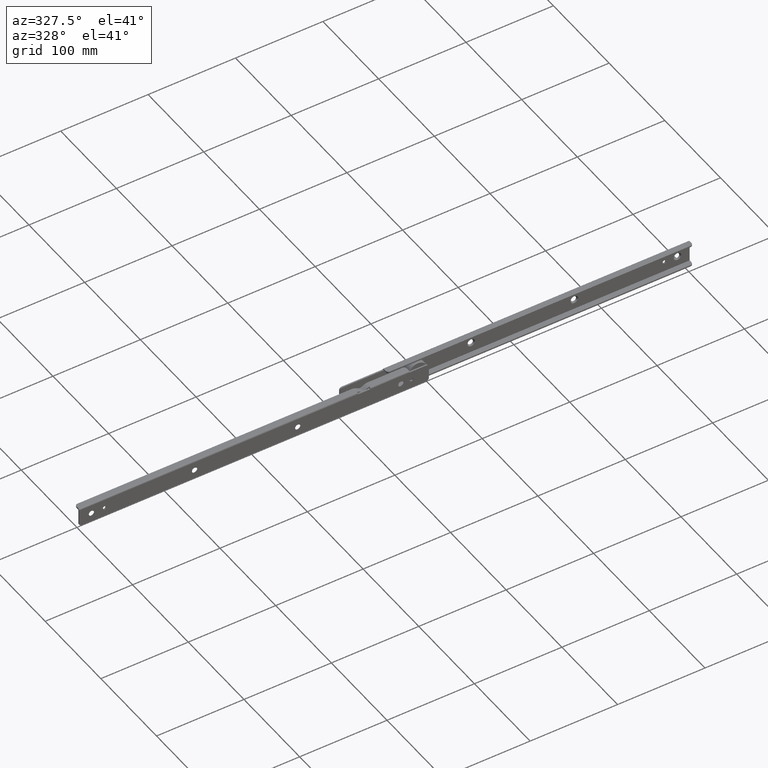
[diagram: clean part render]
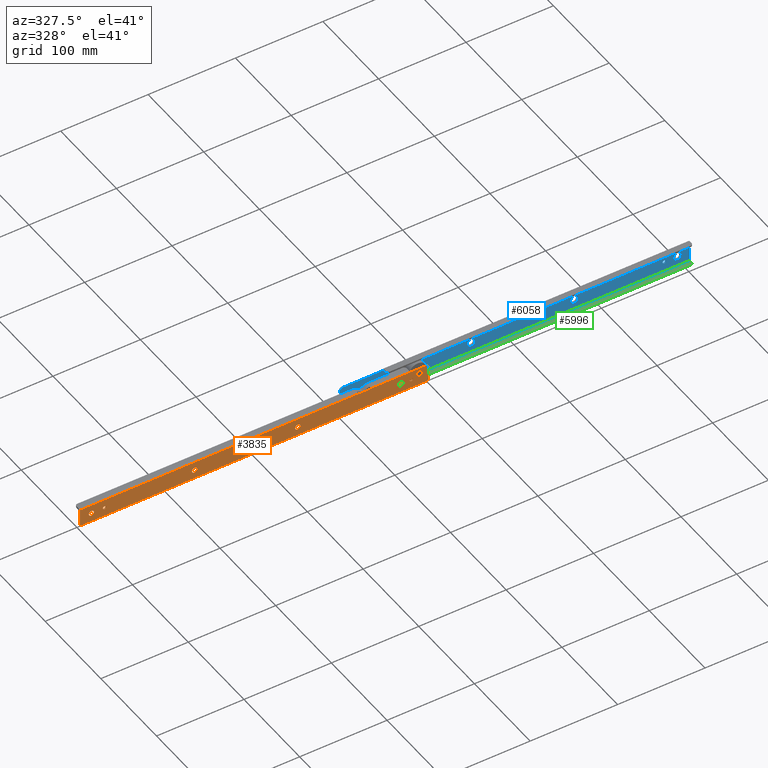
[diagram: same view with three faces highlighted in distinct colors, each labeled with its STEP entity id]
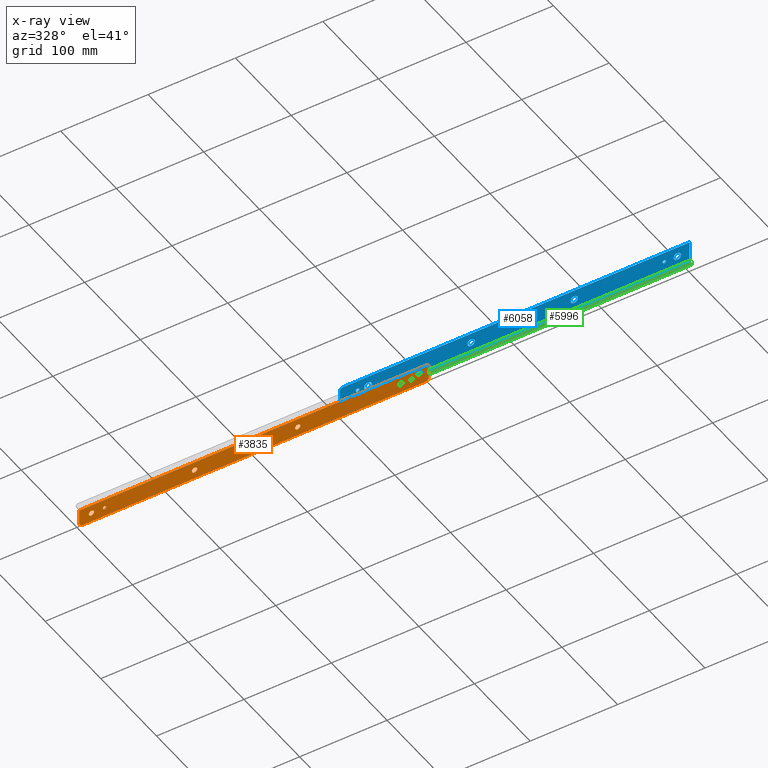
[diagram: x-ray of the same camera — body ghosted, the three highlighted faces saturated]
A machine part, auxiliary view with three faces highlighted in distinct colors.
The next image is the same camera in x-ray (body ghosted, the three faces saturated) — at least one of them is partly hidden behind the body in this view.
Their STEP definitions:

[orange] entity #3835 — the highlighted face is a freeform B-spline surface patch.
#1367=CARTESIAN_POINT('',(84.0,-12.0,-10.549999999999800));
#1368=VERTEX_POINT('',#1367);
#1369=CARTESIAN_POINT('',(86.940906133188662,-12.0,-7.831454349220833));
#1370=VERTEX_POINT('',#1369);
#1371=CARTESIAN_POINT('',(84.0,-12.0,-10.549999999999800));
#1372=CARTESIAN_POINT('',(86.726951919095370,-11.999999999999998,-10.549999999999802));
#1373=CARTESIAN_POINT('',(86.940906133188662,-11.999999999999998,-7.831454349220833));
#1381=(BOUNDED_CURVE()B_SPLINE_CURVE(2,(#1371,#1372,#1373),.UNSPECIFIED.,.F.,.U.)B_SPLINE_CURVE_WITH_KNOTS((3,3),(0.0,0.236331298671449),.UNSPECIFIED.)CURVE()GEOMETRIC_REPRESENTATION_ITEM()RATIONAL_B_SPLINE_CURVE((1.0,0.723120660903024,0.969723352078693))REPRESENTATION_ITEM(''));
#1382=EDGE_CURVE('',#1368,#1370,#1381,.T.);
#1423=CARTESIAN_POINT('',(81.059093866811352,-12.0,-7.368545650778768));
#1424=VERTEX_POINT('',#1423);
#1430=CARTESIAN_POINT('',(81.059093866811352,-12.000000000000004,-7.368545650778768));
#1431=CARTESIAN_POINT('',(81.050000000000011,-11.999999999999998,-7.484094167425211));
#1432=CARTESIAN_POINT('',(81.050000000000011,-12.0,-7.599999999999800));
#1433=CARTESIAN_POINT('',(81.050000000000011,-12.0,-10.549999999999802));
#1434=CARTESIAN_POINT('',(84.0,-12.0,-10.549999999999800));
#1442=(BOUNDED_CURVE()B_SPLINE_CURVE(2,(#1430,#1431,#1432,#1433,#1434),.UNSPECIFIED.,.F.,.U.)B_SPLINE_CURVE_WITH_KNOTS((3,2,3),(0.736331298671449,0.750000000000000,1.0),.UNSPECIFIED.)CURVE()GEOMETRIC_REPRESENTATION_ITEM()RATIONAL_B_SPLINE_CURVE((0.969723352078694,0.983986120283524,1.0,0.707106781186548,1.0))REPRESENTATION_ITEM(''));
#1443=EDGE_CURVE('',#1424,#1368,#1442,.T.);
#1466=CARTESIAN_POINT('',(84.0,-12.0,-4.649999999999801));
#1467=VERTEX_POINT('',#1466);
#1468=CARTESIAN_POINT('',(86.940906133188662,-11.999999999999995,-7.831454349220834));
#1469=CARTESIAN_POINT('',(86.949999999999989,-12.0,-7.715905832574388));
#1470=CARTESIAN_POINT('',(86.950000000000003,-12.0,-7.599999999999800));
#1471=CARTESIAN_POINT('',(86.950000000000003,-12.0,-4.649999999999801));
#1472=CARTESIAN_POINT('',(84.0,-12.0,-4.649999999999801));
#1480=(BOUNDED_CURVE()B_SPLINE_CURVE(2,(#1468,#1469,#1470,#1471,#1472),.UNSPECIFIED.,.F.,.U.)B_SPLINE_CURVE_WITH_KNOTS((3,2,3),(0.236331298671449,0.250000000000000,0.500000000000000),.UNSPECIFIED.)CURVE()GEOMETRIC_REPRESENTATION_ITEM()RATIONAL_B_SPLINE_CURVE((0.969723352078694,0.983986120283523,1.0,0.707106781186548,1.0))REPRESENTATION_ITEM(''));
#1481=EDGE_CURVE('',#1370,#1467,#1480,.T.);
#1483=CARTESIAN_POINT('',(84.0,-12.0,-4.649999999999801));
#1484=CARTESIAN_POINT('',(81.273048080904630,-12.000000000000002,-4.649999999999801));
#1485=CARTESIAN_POINT('',(81.059093866811352,-12.0,-7.368545650778768));
#1493=(BOUNDED_CURVE()B_SPLINE_CURVE(2,(#1483,#1484,#1485),.UNSPECIFIED.,.F.,.U.)B_SPLINE_CURVE_WITH_KNOTS((3,3),(0.500000000000000,0.736331298671448),.UNSPECIFIED.)CURVE()GEOMETRIC_REPRESENTATION_ITEM()RATIONAL_B_SPLINE_CURVE((1.0,0.723120660903024,0.969723352078693))REPRESENTATION_ITEM(''));
#1494=EDGE_CURVE('',#1467,#1424,#1493,.T.);
#1549=CARTESIAN_POINT('',(63.0,-12.0,-8.599999999999799));
#1550=VERTEX_POINT('',#1549);
#1551=CARTESIAN_POINT('',(60.009247996658452,-11.999999992453690,-11.364622661887349));
#1552=VERTEX_POINT('',#1551);
#1553=CARTESIAN_POINT('',(63.0,-12.0,-8.599999999999799));
#1554=CARTESIAN_POINT('',(60.226828618870087,-12.000000000000002,-8.599999999999799));
#1555=CARTESIAN_POINT('',(60.009247996658452,-11.999999992453690,-11.364622661887354));
#1563=(BOUNDED_CURVE()B_SPLINE_CURVE(2,(#1553,#1554,#1555),.UNSPECIFIED.,.F.,.U.)B_SPLINE_CURVE_WITH_KNOTS((3,3),(0.0,0.236331294849608),.UNSPECIFIED.)CURVE()GEOMETRIC_REPRESENTATION_ITEM()RATIONAL_B_SPLINE_CURVE((1.0,0.723120665380588,0.969723344102805))REPRESENTATION_ITEM(''));
#1564=EDGE_CURVE('',#1550,#1552,#1563,.T.);
#1605=CARTESIAN_POINT('',(65.990752003341555,-11.999999992453690,-11.835377338112240));
#1606=VERTEX_POINT('',#1605);
#1612=CARTESIAN_POINT('',(65.990752003341555,-11.999999992453686,-11.835377338112247));
#1613=CARTESIAN_POINT('',(66.0,-11.999999999999996,-11.717870371704770));
#1614=CARTESIAN_POINT('',(66.0,-12.0,-11.599999999999801));
#1615=CARTESIAN_POINT('',(66.0,-12.0,-8.599999999999799));
#1616=CARTESIAN_POINT('',(63.0,-12.0,-8.599999999999799));
#1624=(BOUNDED_CURVE()B_SPLINE_CURVE(2,(#1612,#1613,#1614,#1615,#1616),.UNSPECIFIED.,.F.,.U.)B_SPLINE_CURVE_WITH_KNOTS((3,2,3),(0.736331294849609,0.750000000000000,1.0),.UNSPECIFIED.)CURVE()GEOMETRIC_REPRESENTATION_ITEM()RATIONAL_B_SPLINE_CURVE((0.969723344102806,0.983986115805959,1.0,0.707106781186548,1.0))REPRESENTATION_ITEM(''));
#1625=EDGE_CURVE('',#1606,#1550,#1624,.T.);
#1648=CARTESIAN_POINT('',(63.0,-12.0,-14.599999999999801));
#1649=VERTEX_POINT('',#1648);
#1650=CARTESIAN_POINT('',(60.009247996658452,-11.999999992453690,-11.364622661887354));
#1651=CARTESIAN_POINT('',(59.999999999999993,-12.0,-11.482129628294828));
#1652=CARTESIAN_POINT('',(60.0,-12.0,-11.599999999999801));
#1653=CARTESIAN_POINT('',(60.0,-12.0,-14.599999999999794));
#1654=CARTESIAN_POINT('',(63.0,-12.0,-14.599999999999801));
#1662=(BOUNDED_CURVE()B_SPLINE_CURVE(2,(#1650,#1651,#1652,#1653,#1654),.UNSPECIFIED.,.F.,.U.)B_SPLINE_CURVE_WITH_KNOTS((3,2,3),(0.236331294849608,0.250000000000000,0.500000000000000),.UNSPECIFIED.)CURVE()GEOMETRIC_REPRESENTATION_ITEM()RATIONAL_B_SPLINE_CURVE((0.969723344102805,0.983986115805959,1.0,0.707106781186548,1.0))REPRESENTATION_ITEM(''));
#1663=EDGE_CURVE('',#1552,#1649,#1662,.T.);
#1665=CARTESIAN_POINT('',(63.0,-12.0,-14.599999999999801));
#1666=CARTESIAN_POINT('',(65.773171381129899,-12.000000000000002,-14.599999999999801));
#1667=CARTESIAN_POINT('',(65.990752003341541,-11.999999992453688,-11.835377338112240));
#1675=(BOUNDED_CURVE()B_SPLINE_CURVE(2,(#1665,#1666,#1667),.UNSPECIFIED.,.F.,.U.)B_SPLINE_CURVE_WITH_KNOTS((3,3),(0.500000000000000,0.736331294849608),.UNSPECIFIED.)CURVE()GEOMETRIC_REPRESENTATION_ITEM()RATIONAL_B_SPLINE_CURVE((1.0,0.723120665380589,0.969723344102804))REPRESENTATION_ITEM(''));
#1676=EDGE_CURVE('',#1649,#1606,#1675,.T.);
#1731=CARTESIAN_POINT('',(-55.0,-12.0,-8.599999999999799));
#1732=VERTEX_POINT('',#1731);
#1733=CARTESIAN_POINT('',(-57.990752003341541,-11.999999992453690,-11.364622661887349));
#1734=VERTEX_POINT('',#1733);
#1735=CARTESIAN_POINT('',(-55.0,-12.0,-8.599999999999799));
#1736=CARTESIAN_POINT('',(-57.773171381129920,-12.000000000000002,-8.599999999999799));
#1737=CARTESIAN_POINT('',(-57.990752003341541,-11.999999992453690,-11.364622661887354));
#1745=(BOUNDED_CURVE()B_SPLINE_CURVE(2,(#1735,#1736,#1737),.UNSPECIFIED.,.F.,.U.)B_SPLINE_CURVE_WITH_KNOTS((3,3),(0.0,0.236331294849608),.UNSPECIFIED.)CURVE()GEOMETRIC_REPRESENTATION_ITEM()RATIONAL_B_SPLINE_CURVE((1.0,0.723120665380588,0.969723344102805))REPRESENTATION_ITEM(''));
#1746=EDGE_CURVE('',#1732,#1734,#1745,.T.);
#1787=CARTESIAN_POINT('',(-52.009247996658459,-11.999999992453690,-11.835377338112250));
#1788=VERTEX_POINT('',#1787);
#1794=CARTESIAN_POINT('',(-52.009247996658459,-11.999999992453690,-11.835377338112242));
#1795=CARTESIAN_POINT('',(-52.0,-12.0,-11.717870371704771));
#1796=CARTESIAN_POINT('',(-52.0,-12.0,-11.599999999999801));
#1797=CARTESIAN_POINT('',(-52.000000000000007,-12.0,-8.599999999999799));
#1798=CARTESIAN_POINT('',(-55.0,-12.0,-8.599999999999799));
#1806=(BOUNDED_CURVE()B_SPLINE_CURVE(2,(#1794,#1795,#1796,#1797,#1798),.UNSPECIFIED.,.F.,.U.)B_SPLINE_CURVE_WITH_KNOTS((3,2,3),(0.736331294849608,0.750000000000000,1.0),.UNSPECIFIED.)CURVE()GEOMETRIC_REPRESENTATION_ITEM()RATIONAL_B_SPLINE_CURVE((0.969723344102805,0.983986115805959,1.0,0.707106781186548,1.0))REPRESENTATION_ITEM(''));
#1807=EDGE_CURVE('',#1788,#1732,#1806,.T.);
#1830=CARTESIAN_POINT('',(-55.0,-12.0,-14.599999999999801));
#1831=VERTEX_POINT('',#1830);
#1832=CARTESIAN_POINT('',(-57.990752003341541,-11.999999992453690,-11.364622661887354));
#1833=CARTESIAN_POINT('',(-58.0,-12.0,-11.482129628294828));
#1834=CARTESIAN_POINT('',(-58.0,-12.0,-11.599999999999801));
#1835=CARTESIAN_POINT('',(-58.0,-12.0,-14.599999999999794));
#1836=CARTESIAN_POINT('',(-55.0,-12.0,-14.599999999999801));
#1844=(BOUNDED_CURVE()B_SPLINE_CURVE(2,(#1832,#1833,#1834,#1835,#1836),.UNSPECIFIED.,.F.,.U.)B_SPLINE_CURVE_WITH_KNOTS((3,2,3),(0.236331294849608,0.250000000000000,0.500000000000000),.UNSPECIFIED.)CURVE()GEOMETRIC_REPRESENTATION_ITEM()RATIONAL_B_SPLINE_CURVE((0.969723344102805,0.983986115805959,1.0,0.707106781186548,1.0))REPRESENTATION_ITEM(''));
#1845=EDGE_CURVE('',#1734,#1831,#1844,.T.);
#1847=CARTESIAN_POINT('',(-55.0,-12.0,-14.599999999999801));
#1848=CARTESIAN_POINT('',(-52.226828618870115,-12.000000000000002,-14.599999999999801));
#1849=CARTESIAN_POINT('',(-52.009247996658452,-11.999999992453688,-11.835377338112250));
#1857=(BOUNDED_CURVE()B_SPLINE_CURVE(2,(#1847,#1848,#1849),.UNSPECIFIED.,.F.,.U.)B_SPLINE_CURVE_WITH_KNOTS((3,3),(0.500000000000000,0.736331294849608),.UNSPECIFIED.)CURVE()GEOMETRIC_REPRESENTATION_ITEM()RATIONAL_B_SPLINE_CURVE((1.0,0.723120665380589,0.969723344102804))REPRESENTATION_ITEM(''));
#1858=EDGE_CURVE('',#1831,#1788,#1857,.T.);
#1913=CARTESIAN_POINT('',(-173.0,-12.0,-8.599999999999799));
#1914=VERTEX_POINT('',#1913);
#1915=CARTESIAN_POINT('',(-175.990752003341610,-11.999999992453690,-11.364622661887349));
#1916=VERTEX_POINT('',#1915);
#1917=CARTESIAN_POINT('',(-173.0,-12.0,-8.599999999999799));
#1918=CARTESIAN_POINT('',(-175.773171381129940,-12.0,-8.599999999999797));
#1919=CARTESIAN_POINT('',(-175.990752003341560,-11.999999992453693,-11.364622661887358));
#1927=(BOUNDED_CURVE()B_SPLINE_CURVE(2,(#1917,#1918,#1919),.UNSPECIFIED.,.F.,.U.)B_SPLINE_CURVE_WITH_KNOTS((3,3),(0.0,0.236331294849608),.UNSPECIFIED.)CURVE()GEOMETRIC_REPRESENTATION_ITEM()RATIONAL_B_SPLINE_CURVE((1.0,0.723120665380589,0.969723344102805))REPRESENTATION_ITEM(''));
#1928=EDGE_CURVE('',#1914,#1916,#1927,.T.);
#1969=CARTESIAN_POINT('',(-170.009247996658500,-11.999999992453681,-11.835377338112250));
#1970=VERTEX_POINT('',#1969);
#1976=CARTESIAN_POINT('',(-170.009247996658440,-11.999999992453684,-11.835377338112247));
#1977=CARTESIAN_POINT('',(-169.999999999999970,-12.000000000000002,-11.717870371704764));
#1978=CARTESIAN_POINT('',(-170.0,-12.0,-11.599999999999801));
#1979=CARTESIAN_POINT('',(-170.000000000000030,-12.0,-8.599999999999799));
#1980=CARTESIAN_POINT('',(-173.0,-12.0,-8.599999999999799));
#1988=(BOUNDED_CURVE()B_SPLINE_CURVE(2,(#1976,#1977,#1978,#1979,#1980),.UNSPECIFIED.,.F.,.U.)B_SPLINE_CURVE_WITH_KNOTS((3,2,3),(0.736331294849608,0.750000000000000,1.0),.UNSPECIFIED.)CURVE()GEOMETRIC_REPRESENTATION_ITEM()RATIONAL_B_SPLINE_CURVE((0.969723344102805,0.983986115805959,1.0,0.707106781186548,1.0))REPRESENTATION_ITEM(''));
#1989=EDGE_CURVE('',#1970,#1914,#1988,.T.);
#2012=CARTESIAN_POINT('',(-173.0,-12.0,-14.599999999999801));
#2013=VERTEX_POINT('',#2012);
#2014=CARTESIAN_POINT('',(-175.990752003341530,-11.999999992453690,-11.364622661887354));
#2015=CARTESIAN_POINT('',(-175.999999999999970,-12.0,-11.482129628294828));
#2016=CARTESIAN_POINT('',(-176.0,-12.0,-11.599999999999801));
#2017=CARTESIAN_POINT('',(-176.000000000000060,-12.0,-14.599999999999794));
#2018=CARTESIAN_POINT('',(-173.0,-12.0,-14.599999999999801));
#2026=(BOUNDED_CURVE()B_SPLINE_CURVE(2,(#2014,#2015,#2016,#2017,#2018),.UNSPECIFIED.,.F.,.U.)B_SPLINE_CURVE_WITH_KNOTS((3,2,3),(0.236331294849608,0.250000000000000,0.500000000000000),.UNSPECIFIED.)CURVE()GEOMETRIC_REPRESENTATION_ITEM()RATIONAL_B_SPLINE_CURVE((0.969723344102805,0.983986115805959,1.0,0.707106781186548,1.0))REPRESENTATION_ITEM(''));
#2027=EDGE_CURVE('',#1916,#2013,#2026,.T.);
#2029=CARTESIAN_POINT('',(-173.0,-12.0,-14.599999999999801));
#2030=CARTESIAN_POINT('',(-170.226828618870120,-12.000000000000002,-14.599999999999801));
#2031=CARTESIAN_POINT('',(-170.009247996658530,-11.999999992453679,-11.835377338112250));
#2039=(BOUNDED_CURVE()B_SPLINE_CURVE(2,(#2029,#2030,#2031),.UNSPECIFIED.,.F.,.U.)B_SPLINE_CURVE_WITH_KNOTS((3,3),(0.500000000000000,0.736331294849608),.UNSPECIFIED.)CURVE()GEOMETRIC_REPRESENTATION_ITEM()RATIONAL_B_SPLINE_CURVE((1.0,0.723120665380589,0.969723344102804))REPRESENTATION_ITEM(''));
#2040=EDGE_CURVE('',#2013,#1970,#2039,.T.);
#2095=CARTESIAN_POINT('',(-291.0,-12.0,-8.599999999999799));
#2096=VERTEX_POINT('',#2095);
#2097=CARTESIAN_POINT('',(-293.990752003341580,-11.999999992453690,-11.364622661887349));
#2098=VERTEX_POINT('',#2097);
#2099=CARTESIAN_POINT('',(-291.0,-12.0,-8.599999999999799));
#2100=CARTESIAN_POINT('',(-293.773171381129880,-12.0,-8.599999999999799));
#2101=CARTESIAN_POINT('',(-293.990752003341580,-11.999999992453693,-11.364622661887358));
#2109=(BOUNDED_CURVE()B_SPLINE_CURVE(2,(#2099,#2100,#2101),.UNSPECIFIED.,.F.,.U.)B_SPLINE_CURVE_WITH_KNOTS((3,3),(0.0,0.236331294849609),.UNSPECIFIED.)CURVE()GEOMETRIC_REPRESENTATION_ITEM()RATIONAL_B_SPLINE_CURVE((1.0,0.723120665380588,0.969723344102806))REPRESENTATION_ITEM(''));
#2110=EDGE_CURVE('',#2096,#2098,#2109,.T.);
#2151=CARTESIAN_POINT('',(-288.009247996658470,-11.999999992453690,-11.835377338112250));
#2152=VERTEX_POINT('',#2151);
#2158=CARTESIAN_POINT('',(-288.009247996658470,-11.999999992453690,-11.835377338112242));
#2159=CARTESIAN_POINT('',(-288.000000000000060,-12.0,-11.717870371704771));
#2160=CARTESIAN_POINT('',(-288.0,-12.0,-11.599999999999801));
#2161=CARTESIAN_POINT('',(-288.0,-12.0,-8.599999999999799));
#2162=CARTESIAN_POINT('',(-291.0,-12.0,-8.599999999999799));
#2170=(BOUNDED_CURVE()B_SPLINE_CURVE(2,(#2158,#2159,#2160,#2161,#2162),.UNSPECIFIED.,.F.,.U.)B_SPLINE_CURVE_WITH_KNOTS((3,2,3),(0.736331294849608,0.750000000000000,1.0),.UNSPECIFIED.)CURVE()GEOMETRIC_REPRESENTATION_ITEM()RATIONAL_B_SPLINE_CURVE((0.969723344102805,0.983986115805959,1.0,0.707106781186548,1.0))REPRESENTATION_ITEM(''));
#2171=EDGE_CURVE('',#2152,#2096,#2170,.T.);
#2194=CARTESIAN_POINT('',(-291.0,-12.0,-14.599999999999801));
#2195=VERTEX_POINT('',#2194);
#2196=CARTESIAN_POINT('',(-293.990752003341640,-11.999999992453688,-11.364622661887353));
#2197=CARTESIAN_POINT('',(-294.000000000000060,-11.999999999999998,-11.482129628294837));
#2198=CARTESIAN_POINT('',(-294.0,-12.0,-11.599999999999801));
#2199=CARTESIAN_POINT('',(-294.0,-12.0,-14.599999999999794));
#2200=CARTESIAN_POINT('',(-291.0,-12.0,-14.599999999999801));
#2208=(BOUNDED_CURVE()B_SPLINE_CURVE(2,(#2196,#2197,#2198,#2199,#2200),.UNSPECIFIED.,.F.,.U.)B_SPLINE_CURVE_WITH_KNOTS((3,2,3),(0.236331294849609,0.250000000000000,0.500000000000000),.UNSPECIFIED.)CURVE()GEOMETRIC_REPRESENTATION_ITEM()RATIONAL_B_SPLINE_CURVE((0.969723344102805,0.983986115805959,1.0,0.707106781186548,1.0))REPRESENTATION_ITEM(''));
#2209=EDGE_CURVE('',#2098,#2195,#2208,.T.);
#2211=CARTESIAN_POINT('',(-291.0,-12.0,-14.599999999999801));
#2212=CARTESIAN_POINT('',(-288.226828618870060,-12.000000000000002,-14.599999999999801));
#2213=CARTESIAN_POINT('',(-288.009247996658530,-11.999999992453688,-11.835377338112250));
#2221=(BOUNDED_CURVE()B_SPLINE_CURVE(2,(#2211,#2212,#2213),.UNSPECIFIED.,.F.,.U.)B_SPLINE_CURVE_WITH_KNOTS((3,3),(0.500000000000000,0.736331294849608),.UNSPECIFIED.)CURVE()GEOMETRIC_REPRESENTATION_ITEM()RATIONAL_B_SPLINE_CURVE((1.0,0.723120665380589,0.969723344102804))REPRESENTATION_ITEM(''));
#2222=EDGE_CURVE('',#2195,#2152,#2221,.T.);
#2277=CARTESIAN_POINT('',(-276.0,-12.0,-9.599999999999799));
#2278=VERTEX_POINT('',#2277);
#2279=CARTESIAN_POINT('',(-277.993834666779210,-12.0,-11.443081799814310));
#2280=VERTEX_POINT('',#2279);
#2281=CARTESIAN_POINT('',(-276.0,-12.0,-9.599999999999799));
#2282=CARTESIAN_POINT('',(-277.848780967077060,-12.000000000000002,-9.599999999999799));
#2283=CARTESIAN_POINT('',(-277.993834666779150,-11.999999999999995,-11.443081799814308));
#2291=(BOUNDED_CURVE()B_SPLINE_CURVE(2,(#2281,#2282,#2283),.UNSPECIFIED.,.F.,.U.)B_SPLINE_CURVE_WITH_KNOTS((3,3),(0.0,0.236331299131639),.UNSPECIFIED.)CURVE()GEOMETRIC_REPRESENTATION_ITEM()RATIONAL_B_SPLINE_CURVE((1.0,0.723120660363877,0.969723353039076))REPRESENTATION_ITEM(''));
#2292=EDGE_CURVE('',#2278,#2280,#2291,.T.);
#2333=CARTESIAN_POINT('',(-274.006165333220790,-12.0,-11.756918200185281));
#2334=VERTEX_POINT('',#2333);
#2340=CARTESIAN_POINT('',(-274.006165333220790,-12.000000000000004,-11.756918200185279));
#2341=CARTESIAN_POINT('',(-274.0,-11.999999999999998,-11.678580222785440));
#2342=CARTESIAN_POINT('',(-274.0,-12.0,-11.599999999999801));
#2343=CARTESIAN_POINT('',(-273.999999999999940,-12.0,-9.599999999999799));
#2344=CARTESIAN_POINT('',(-276.0,-12.0,-9.599999999999799));
#2352=(BOUNDED_CURVE()B_SPLINE_CURVE(2,(#2340,#2341,#2342,#2343,#2344),.UNSPECIFIED.,.F.,.U.)B_SPLINE_CURVE_WITH_KNOTS((3,2,3),(0.736331299131639,0.750000000000000,1.0),.UNSPECIFIED.)CURVE()GEOMETRIC_REPRESENTATION_ITEM()RATIONAL_B_SPLINE_CURVE((0.969723353039076,0.983986120822670,1.0,0.707106781186548,1.0))REPRESENTATION_ITEM(''));
#2353=EDGE_CURVE('',#2334,#2278,#2352,.T.);
#2376=CARTESIAN_POINT('',(-276.0,-12.0,-13.599999999999801));
#2377=VERTEX_POINT('',#2376);
#2378=CARTESIAN_POINT('',(-277.993834666779210,-11.999999999999996,-11.443081799814312));
#2379=CARTESIAN_POINT('',(-278.000000000000060,-12.0,-11.521419777214158));
#2380=CARTESIAN_POINT('',(-278.0,-12.0,-11.599999999999801));
#2381=CARTESIAN_POINT('',(-278.0,-12.0,-13.599999999999799));
#2382=CARTESIAN_POINT('',(-276.0,-12.0,-13.599999999999801));
#2390=(BOUNDED_CURVE()B_SPLINE_CURVE(2,(#2378,#2379,#2380,#2381,#2382),.UNSPECIFIED.,.F.,.U.)B_SPLINE_CURVE_WITH_KNOTS((3,2,3),(0.236331299131639,0.250000000000000,0.500000000000000),.UNSPECIFIED.)CURVE()GEOMETRIC_REPRESENTATION_ITEM()RATIONAL_B_SPLINE_CURVE((0.969723353039076,0.983986120822670,1.0,0.707106781186548,1.0))REPRESENTATION_ITEM(''));
#2391=EDGE_CURVE('',#2280,#2377,#2390,.T.);
#2393=CARTESIAN_POINT('',(-276.0,-12.0,-13.599999999999801));
#2394=CARTESIAN_POINT('',(-274.151219032923000,-12.0,-13.599999999999799));
#2395=CARTESIAN_POINT('',(-274.006165333220790,-11.999999999999998,-11.756918200185281));
#2403=(BOUNDED_CURVE()B_SPLINE_CURVE(2,(#2393,#2394,#2395),.UNSPECIFIED.,.F.,.U.)B_SPLINE_CURVE_WITH_KNOTS((3,3),(0.500000000000000,0.736331299131640),.UNSPECIFIED.)CURVE()GEOMETRIC_REPRESENTATION_ITEM()RATIONAL_B_SPLINE_CURVE((1.0,0.723120660363876,0.969723353039079))REPRESENTATION_ITEM(''));
#2404=EDGE_CURVE('',#2377,#2334,#2403,.T.);
#2459=CARTESIAN_POINT('',(75.0,-12.0,-9.599999999999799));
#2460=VERTEX_POINT('',#2459);
#2461=CARTESIAN_POINT('',(73.006165333220792,-12.0,-11.443081799814310));
#2462=VERTEX_POINT('',#2461);
#2463=CARTESIAN_POINT('',(75.0,-12.0,-9.599999999999799));
#2464=CARTESIAN_POINT('',(73.151219032923038,-12.0,-9.599999999999799));
#2465=CARTESIAN_POINT('',(73.006165333220792,-11.999999999999996,-11.443081799814312));
#2473=(BOUNDED_CURVE()B_SPLINE_CURVE(2,(#2463,#2464,#2465),.UNSPECIFIED.,.F.,.U.)B_SPLINE_CURVE_WITH_KNOTS((3,3),(0.0,0.236331299131639),.UNSPECIFIED.)CURVE()GEOMETRIC_REPRESENTATION_ITEM()RATIONAL_B_SPLINE_CURVE((1.0,0.723120660363878,0.969723353039075))REPRESENTATION_ITEM(''));
#2474=EDGE_CURVE('',#2460,#2462,#2473,.T.);
#2515=CARTESIAN_POINT('',(76.993834666779208,-12.0,-11.756918200185281));
#2516=VERTEX_POINT('',#2515);
#2522=CARTESIAN_POINT('',(76.993834666779208,-12.0,-11.756918200185284));
#2523=CARTESIAN_POINT('',(77.0,-12.000000000000002,-11.678580222785444));
#2524=CARTESIAN_POINT('',(77.0,-12.0,-11.599999999999801));
#2525=CARTESIAN_POINT('',(77.000000000000014,-12.0,-9.599999999999799));
#2526=CARTESIAN_POINT('',(75.0,-12.0,-9.599999999999799));
#2534=(BOUNDED_CURVE()B_SPLINE_CURVE(2,(#2522,#2523,#2524,#2525,#2526),.UNSPECIFIED.,.F.,.U.)B_SPLINE_CURVE_WITH_KNOTS((3,2,3),(0.736331299131639,0.750000000000000,1.0),.UNSPECIFIED.)CURVE()GEOMETRIC_REPRESENTATION_ITEM()RATIONAL_B_SPLINE_CURVE((0.969723353039076,0.983986120822670,1.0,0.707106781186548,1.0))REPRESENTATION_ITEM(''));
#2535=EDGE_CURVE('',#2516,#2460,#2534,.T.);
#2558=CARTESIAN_POINT('',(75.0,-12.0,-13.599999999999801));
#2559=VERTEX_POINT('',#2558);
#2560=CARTESIAN_POINT('',(73.006165333220792,-12.000000000000005,-11.443081799814308));
#2561=CARTESIAN_POINT('',(73.0,-12.000000000000005,-11.521419777214152));
#2562=CARTESIAN_POINT('',(73.0,-12.0,-11.599999999999801));
#2563=CARTESIAN_POINT('',(72.999999999999986,-12.0,-13.599999999999799));
#2564=CARTESIAN_POINT('',(75.0,-12.0,-13.599999999999801));
#2572=(BOUNDED_CURVE()B_SPLINE_CURVE(2,(#2560,#2561,#2562,#2563,#2564),.UNSPECIFIED.,.F.,.U.)B_SPLINE_CURVE_WITH_KNOTS((3,2,3),(0.236331299131639,0.250000000000000,0.500000000000000),.UNSPECIFIED.)CURVE()GEOMETRIC_REPRESENTATION_ITEM()RATIONAL_B_SPLINE_CURVE((0.969723353039075,0.983986120822670,1.0,0.707106781186548,1.0))REPRESENTATION_ITEM(''));
#2573=EDGE_CURVE('',#2462,#2559,#2572,.T.);
#2575=CARTESIAN_POINT('',(75.0,-12.0,-13.599999999999801));
#2576=CARTESIAN_POINT('',(76.848780967076976,-12.000000000000002,-13.599999999999799));
#2577=CARTESIAN_POINT('',(76.993834666779208,-12.000000000000004,-11.756918200185286));
#2585=(BOUNDED_CURVE()B_SPLINE_CURVE(2,(#2575,#2576,#2577),.UNSPECIFIED.,.F.,.U.)B_SPLINE_CURVE_WITH_KNOTS((3,3),(0.500000000000000,0.736331299131638),.UNSPECIFIED.)CURVE()GEOMETRIC_REPRESENTATION_ITEM()RATIONAL_B_SPLINE_CURVE((1.0,0.723120660363879,0.969723353039074))REPRESENTATION_ITEM(''));
#2586=EDGE_CURVE('',#2559,#2516,#2585,.T.);
#3188=CARTESIAN_POINT('',(-302.0,-12.0,-21.600000000000001));
#3189=VERTEX_POINT('',#3188);
#3195=CARTESIAN_POINT('',(-305.0,-12.0,-18.600000000000001));
#3196=VERTEX_POINT('',#3195);
#3197=CARTESIAN_POINT('',(-305.0,-12.0,-18.600000000000001));
#3198=CARTESIAN_POINT('',(-305.0,-12.0,-21.600000000000005));
#3199=CARTESIAN_POINT('',(-302.0,-12.0,-21.600000000000001));
#3207=(BOUNDED_CURVE()B_SPLINE_CURVE(2,(#3197,#3198,#3199),.UNSPECIFIED.,.F.,.U.)CURVE()GEOMETRIC_REPRESENTATION_ITEM()QUASI_UNIFORM_CURVE()RATIONAL_B_SPLINE_CURVE((1.0,0.707106781186548,1.0))REPRESENTATION_ITEM(''));
#3208=EDGE_CURVE('',#3196,#3189,#3207,.T.);
#3249=CARTESIAN_POINT('',(92.0,-12.0,-1.599999999999795));
#3250=VERTEX_POINT('',#3249);
#3256=CARTESIAN_POINT('',(95.0,-12.0,-4.599999999999800));
#3257=VERTEX_POINT('',#3256);
#3258=CARTESIAN_POINT('',(95.0,-12.0,-4.599999999999800));
#3259=CARTESIAN_POINT('',(95.000000000000014,-12.0,-1.599999999999799));
#3260=CARTESIAN_POINT('',(92.0,-12.0,-1.599999999999800));
#3268=(BOUNDED_CURVE()B_SPLINE_CURVE(2,(#3258,#3259,#3260),.UNSPECIFIED.,.F.,.U.)CURVE()GEOMETRIC_REPRESENTATION_ITEM()QUASI_UNIFORM_CURVE()RATIONAL_B_SPLINE_CURVE((1.0,0.707106781186548,1.0))REPRESENTATION_ITEM(''));
#3269=EDGE_CURVE('',#3257,#3250,#3268,.T.);
#3310=CARTESIAN_POINT('',(95.0,-12.0,-18.600000000000001));
#3311=VERTEX_POINT('',#3310);
#3317=CARTESIAN_POINT('',(92.0,-12.0,-21.600000000000001));
#3318=VERTEX_POINT('',#3317);
#3319=CARTESIAN_POINT('',(92.0,-12.0,-21.600000000000001));
#3320=CARTESIAN_POINT('',(95.000000000000014,-12.0,-21.600000000000005));
#3321=CARTESIAN_POINT('',(95.0,-12.0,-18.600000000000001));
#3329=(BOUNDED_CURVE()B_SPLINE_CURVE(2,(#3319,#3320,#3321),.UNSPECIFIED.,.F.,.U.)CURVE()GEOMETRIC_REPRESENTATION_ITEM()QUASI_UNIFORM_CURVE()RATIONAL_B_SPLINE_CURVE((1.0,0.707106781186548,1.0))REPRESENTATION_ITEM(''));
#3330=EDGE_CURVE('',#3318,#3311,#3329,.T.);
#3345=CARTESIAN_POINT('',(73.0,-12.0,-1.599999999999795));
#3346=VERTEX_POINT('',#3345);
#3347=CARTESIAN_POINT('',(92.0,-12.0,-1.599999999999795));
#3348=CARTESIAN_POINT('',(73.0,-12.0,-1.599999999999795));
#3349=QUASI_UNIFORM_CURVE('',1,(#3347,#3348),.UNSPECIFIED.,.F.,.U.);
#3350=EDGE_CURVE('',#3250,#3346,#3349,.T.);
#3417=CARTESIAN_POINT('',(14.0,-12.0,-1.999999999999800));
#3418=VERTEX_POINT('',#3417);
#3424=CARTESIAN_POINT('',(28.0,-12.0,-1.999999999999800));
#3425=VERTEX_POINT('',#3424);
#3426=CARTESIAN_POINT('',(14.0,-12.0,-1.999999999999800));
#3427=CARTESIAN_POINT('',(28.0,-12.0,-1.999999999999800));
#3428=QUASI_UNIFORM_CURVE('',1,(#3426,#3427),.UNSPECIFIED.,.F.,.U.);
#3429=EDGE_CURVE('',#3418,#3425,#3428,.T.);
#3446=CARTESIAN_POINT('',(14.0,-12.0,-1.599999999999795));
#3447=VERTEX_POINT('',#3446);
#3461=CARTESIAN_POINT('',(14.0,-12.0,-1.599999999999795));
#3462=CARTESIAN_POINT('',(14.0,-12.0,-1.999999999999800));
#3463=QUASI_UNIFORM_CURVE('',1,(#3461,#3462),.UNSPECIFIED.,.F.,.U.);
#3464=EDGE_CURVE('',#3447,#3418,#3463,.T.);
#3487=CARTESIAN_POINT('',(28.0,-12.0,-1.599999999999795));
#3488=VERTEX_POINT('',#3487);
#3517=CARTESIAN_POINT('',(28.0,-12.0,-1.999999999999800));
#3518=CARTESIAN_POINT('',(28.0,-12.0,-1.599999999999795));
#3519=QUASI_UNIFORM_CURVE('',1,(#3517,#3518),.UNSPECIFIED.,.F.,.U.);
#3520=EDGE_CURVE('',#3425,#3488,#3519,.T.);
#3538=CARTESIAN_POINT('',(-305.0,-12.0,-1.599999999999795));
#3539=VERTEX_POINT('',#3538);
#3540=CARTESIAN_POINT('',(-305.0,-12.0,-18.600000000000001));
#3541=CARTESIAN_POINT('',(-305.0,-12.0,-1.599999999999795));
#3542=QUASI_UNIFORM_CURVE('',1,(#3540,#3541),.UNSPECIFIED.,.F.,.U.);
#3543=EDGE_CURVE('',#3196,#3539,#3542,.T.);
#3579=CARTESIAN_POINT('',(95.0,-12.0,-18.600000000000001));
#3580=CARTESIAN_POINT('',(95.0,-12.0,-4.599999999999800));
#3581=QUASI_UNIFORM_CURVE('',1,(#3579,#3580),.UNSPECIFIED.,.F.,.U.);
#3582=EDGE_CURVE('',#3311,#3257,#3581,.T.);
#3685=CARTESIAN_POINT('',(14.0,-12.0,-1.599999999999795));
#3686=CARTESIAN_POINT('',(-305.0,-12.0,-1.599999999999795));
#3687=QUASI_UNIFORM_CURVE('',1,(#3685,#3686),.UNSPECIFIED.,.F.,.U.);
#3688=EDGE_CURVE('',#3447,#3539,#3687,.T.);
#3698=CARTESIAN_POINT('',(92.0,-12.0,-21.600000000000001));
#3699=CARTESIAN_POINT('',(-302.0,-12.0,-21.600000000000001));
#3700=QUASI_UNIFORM_CURVE('',1,(#3698,#3699),.UNSPECIFIED.,.F.,.U.);
#3701=EDGE_CURVE('',#3318,#3189,#3700,.T.);
#3765=CARTESIAN_POINT('',(73.0,-12.0,-1.599999999999795));
#3766=CARTESIAN_POINT('',(28.0,-12.0,-1.599999999999795));
#3767=QUASI_UNIFORM_CURVE('',1,(#3765,#3766),.UNSPECIFIED.,.F.,.U.);
#3768=EDGE_CURVE('',#3346,#3488,#3767,.T.);
#3774=CARTESIAN_POINT('',(-324.979999224722410,-12.0,-0.601000038763667));
#3775=CARTESIAN_POINT('',(-324.979999224722410,-12.0,-22.599000497677942));
#3776=CARTESIAN_POINT('',(114.980009953558390,-12.0,-0.601000038763667));
#3777=CARTESIAN_POINT('',(114.980009953558390,-12.0,-22.599000497677942));
#3778=B_SPLINE_SURFACE_WITH_KNOTS('',1,1,((#3774,#3776),(#3775,#3777)),.UNSPECIFIED.,.F.,.F.,.U.,(2,2),(2,2),(0.0,21.998000458914269),(0.0,439.960009178280930),.UNSPECIFIED.);
#3779=ORIENTED_EDGE('',*,*,#3543,.F.);
#3780=ORIENTED_EDGE('',*,*,#3208,.T.);
#3781=ORIENTED_EDGE('',*,*,#3701,.F.);
#3782=ORIENTED_EDGE('',*,*,#3330,.T.);
#3783=ORIENTED_EDGE('',*,*,#3582,.T.);
#3784=ORIENTED_EDGE('',*,*,#3269,.T.);
#3785=ORIENTED_EDGE('',*,*,#3350,.T.);
#3786=ORIENTED_EDGE('',*,*,#3768,.T.);
#3787=ORIENTED_EDGE('',*,*,#3520,.F.);
#3788=ORIENTED_EDGE('',*,*,#3429,.F.);
#3789=ORIENTED_EDGE('',*,*,#3464,.F.);
#3790=ORIENTED_EDGE('',*,*,#3688,.T.);
#3791=EDGE_LOOP('',(#3779,#3780,#3781,#3782,#3783,#3784,#3785,#3786,#3787,#3788,#3789,#3790));
#3792=FACE_OUTER_BOUND('',#3791,.T.);
#3793=ORIENTED_EDGE('',*,*,#2586,.F.);
#3794=ORIENTED_EDGE('',*,*,#2573,.F.);
#3795=ORIENTED_EDGE('',*,*,#2474,.F.);
#3796=ORIENTED_EDGE('',*,*,#2535,.F.);
#3797=EDGE_LOOP('',(#3793,#3794,#3795,#3796));
#3798=FACE_BOUND('',#3797,.T.);
#3799=ORIENTED_EDGE('',*,*,#2404,.F.);
#3800=ORIENTED_EDGE('',*,*,#2391,.F.);
#3801=ORIENTED_EDGE('',*,*,#2292,.F.);
#3802=ORIENTED_EDGE('',*,*,#2353,.F.);
#3803=EDGE_LOOP('',(#3799,#3800,#3801,#3802));
#3804=FACE_BOUND('',#3803,.T.);
#3805=ORIENTED_EDGE('',*,*,#2222,.F.);
#3806=ORIENTED_EDGE('',*,*,#2209,.F.);
#3807=ORIENTED_EDGE('',*,*,#2110,.F.);
#3808=ORIENTED_EDGE('',*,*,#2171,.F.);
#3809=EDGE_LOOP('',(#3805,#3806,#3807,#3808));
#3810=FACE_BOUND('',#3809,.T.);
#3811=ORIENTED_EDGE('',*,*,#2040,.F.);
#3812=ORIENTED_EDGE('',*,*,#2027,.F.);
#3813=ORIENTED_EDGE('',*,*,#1928,.F.);
#3814=ORIENTED_EDGE('',*,*,#1989,.F.);
#3815=EDGE_LOOP('',(#3811,#3812,#3813,#3814));
#3816=FACE_BOUND('',#3815,.T.);
#3817=ORIENTED_EDGE('',*,*,#1858,.F.);
#3818=ORIENTED_EDGE('',*,*,#1845,.F.);
#3819=ORIENTED_EDGE('',*,*,#1746,.F.);
#3820=ORIENTED_EDGE('',*,*,#1807,.F.);
#3821=EDGE_LOOP('',(#3817,#3818,#3819,#3820));
#3822=FACE_BOUND('',#3821,.T.);
#3823=ORIENTED_EDGE('',*,*,#1676,.F.);
#3824=ORIENTED_EDGE('',*,*,#1663,.F.);
#3825=ORIENTED_EDGE('',*,*,#1564,.F.);
#3826=ORIENTED_EDGE('',*,*,#1625,.F.);
#3827=EDGE_LOOP('',(#3823,#3824,#3825,#3826));
#3828=FACE_BOUND('',#3827,.T.);
#3829=ORIENTED_EDGE('',*,*,#1494,.F.);
#3830=ORIENTED_EDGE('',*,*,#1481,.F.);
#3831=ORIENTED_EDGE('',*,*,#1382,.F.);
#3832=ORIENTED_EDGE('',*,*,#1443,.F.);
#3833=EDGE_LOOP('',(#3829,#3830,#3831,#3832));
#3834=FACE_BOUND('',#3833,.T.);
#3835=ADVANCED_FACE('',(#3792,#3798,#3804,#3810,#3816,#3822,#3828,#3834),#3778,.T.);

[blue] entity #6058 — the highlighted face is a freeform B-spline surface patch.
#3991=CARTESIAN_POINT('',(8.059093866811345,-1.600000000000045,-12.368545650778740));
#3992=VERTEX_POINT('',#3991);
#3998=CARTESIAN_POINT('',(11.0,-1.600000000000045,-15.549999999999800));
#3999=VERTEX_POINT('',#3998);
#4000=CARTESIAN_POINT('',(8.059093866811345,-1.600000000000044,-12.368545650778735));
#4001=CARTESIAN_POINT('',(8.050000000000001,-1.600000000000045,-12.484094167425177));
#4002=CARTESIAN_POINT('',(8.050000000000001,-1.600000000000045,-12.599999999999801));
#4003=CARTESIAN_POINT('',(8.050000000000001,-1.600000000000045,-15.549999999999795));
#4004=CARTESIAN_POINT('',(11.0,-1.600000000000045,-15.549999999999800));
#4012=(BOUNDED_CURVE()B_SPLINE_CURVE(2,(#4000,#4001,#4002,#4003,#4004),.UNSPECIFIED.,.F.,.U.)B_SPLINE_CURVE_WITH_KNOTS((3,2,3),(0.736331298671445,0.750000000000000,1.0),.UNSPECIFIED.)CURVE()GEOMETRIC_REPRESENTATION_ITEM()RATIONAL_B_SPLINE_CURVE((0.969723352078686,0.983986120283519,1.0,0.707106781186548,1.0))REPRESENTATION_ITEM(''));
#4013=EDGE_CURVE('',#3992,#3999,#4012,.T.);
#4015=CARTESIAN_POINT('',(13.940906133188660,-1.600000000000045,-12.831454349220859));
#4016=VERTEX_POINT('',#4015);
#4017=CARTESIAN_POINT('',(11.0,-1.600000000000045,-15.549999999999800));
#4018=CARTESIAN_POINT('',(13.726951919095312,-1.600000000000045,-15.549999999999805));
#4019=CARTESIAN_POINT('',(13.940906133188657,-1.600000000000046,-12.831454349220859));
#4027=(BOUNDED_CURVE()B_SPLINE_CURVE(2,(#4017,#4018,#4019),.UNSPECIFIED.,.F.,.U.)B_SPLINE_CURVE_WITH_KNOTS((3,3),(0.0,0.236331298671445),.UNSPECIFIED.)CURVE()GEOMETRIC_REPRESENTATION_ITEM()RATIONAL_B_SPLINE_CURVE((1.0,0.723120660903028,0.969723352078686))REPRESENTATION_ITEM(''));
#4028=EDGE_CURVE('',#3999,#4016,#4027,.T.);
#4074=CARTESIAN_POINT('',(11.0,-1.600000000000045,-9.649999999999800));
#4075=VERTEX_POINT('',#4074);
#4076=CARTESIAN_POINT('',(13.940906133188657,-1.600000000000046,-12.831454349220859));
#4077=CARTESIAN_POINT('',(13.949999999999998,-1.600000000000045,-12.715905832574425));
#4078=CARTESIAN_POINT('',(13.949999999999999,-1.600000000000045,-12.599999999999801));
#4079=CARTESIAN_POINT('',(13.949999999999999,-1.600000000000045,-9.649999999999800));
#4080=CARTESIAN_POINT('',(11.0,-1.600000000000045,-9.649999999999800));
#4088=(BOUNDED_CURVE()B_SPLINE_CURVE(2,(#4076,#4077,#4078,#4079,#4080),.UNSPECIFIED.,.F.,.U.)B_SPLINE_CURVE_WITH_KNOTS((3,2,3),(0.236331298671445,0.250000000000000,0.500000000000000),.UNSPECIFIED.)CURVE()GEOMETRIC_REPRESENTATION_ITEM()RATIONAL_B_SPLINE_CURVE((0.969723352078686,0.983986120283519,1.0,0.707106781186548,1.0))REPRESENTATION_ITEM(''));
#4089=EDGE_CURVE('',#4016,#4075,#4088,.T.);
#4091=CARTESIAN_POINT('',(11.0,-1.600000000000045,-9.649999999999800));
#4092=CARTESIAN_POINT('',(8.273048080904706,-1.600000000000045,-9.649999999999800));
#4093=CARTESIAN_POINT('',(8.059093866811345,-1.600000000000045,-12.368545650778731));
#4101=(BOUNDED_CURVE()B_SPLINE_CURVE(2,(#4091,#4092,#4093),.UNSPECIFIED.,.F.,.U.)B_SPLINE_CURVE_WITH_KNOTS((3,3),(0.500000000000000,0.736331298671444),.UNSPECIFIED.)CURVE()GEOMETRIC_REPRESENTATION_ITEM()RATIONAL_B_SPLINE_CURVE((1.0,0.723120660903030,0.969723352078684))REPRESENTATION_ITEM(''));
#4102=EDGE_CURVE('',#4075,#3992,#4101,.T.);
#4156=CARTESIAN_POINT('',(27.733255280726119,-1.600000004719585,-7.633750441242771));
#4157=VERTEX_POINT('',#4156);
#4163=CARTESIAN_POINT('',(32.0,-1.599999999999910,-11.399999999999800));
#4164=VERTEX_POINT('',#4163);
#4165=CARTESIAN_POINT('',(32.0,-1.599999999999910,-11.399999999999800));
#4166=CARTESIAN_POINT('',(28.204396076414682,-1.599999999999910,-11.399999999999798));
#4167=CARTESIAN_POINT('',(27.733255280726123,-1.600000004719586,-7.633750441242771));
#4175=(BOUNDED_CURVE()B_SPLINE_CURVE(2,(#4165,#4166,#4167),.UNSPECIFIED.,.F.,.U.)B_SPLINE_CURVE_WITH_KNOTS((3,3),(0.500000000000000,0.728526068513593),.UNSPECIFIED.)CURVE()GEOMETRIC_REPRESENTATION_ITEM()RATIONAL_B_SPLINE_CURVE((1.0,0.732265056841081,0.954005425392706))REPRESENTATION_ITEM(''));
#4176=EDGE_CURVE('',#4164,#4157,#4175,.T.);
#4178=CARTESIAN_POINT('',(36.299836270926079,-1.600000002317306,-7.062475882139019));
#4179=VERTEX_POINT('',#4178);
#4180=CARTESIAN_POINT('',(36.299836270926079,-1.600000002317306,-7.062475882139019));
#4181=CARTESIAN_POINT('',(36.299999999999997,-1.599999999999911,-7.081237576268571));
#4182=CARTESIAN_POINT('',(36.299999999999997,-1.599999999999910,-7.099999999999799));
#4183=CARTESIAN_POINT('',(36.299999999999997,-1.599999999999911,-11.399999999999798));
#4184=CARTESIAN_POINT('',(32.0,-1.599999999999910,-11.399999999999800));
#4192=(BOUNDED_CURVE()B_SPLINE_CURVE(2,(#4180,#4181,#4182,#4183,#4184),.UNSPECIFIED.,.F.,.U.)B_SPLINE_CURVE_WITH_KNOTS((3,2,3),(0.248460104419567,0.250000000000000,0.500000000000000),.UNSPECIFIED.)CURVE()GEOMETRIC_REPRESENTATION_ITEM()RATIONAL_B_SPLINE_CURVE((0.996414025218095,0.998195900107241,1.0,0.707106781186547,1.0))REPRESENTATION_ITEM(''));
#4193=EDGE_CURVE('',#4179,#4164,#4192,.T.);
#4273=CARTESIAN_POINT('',(32.0,-1.599999999999910,-2.799999999999799));
#4274=VERTEX_POINT('',#4273);
#4275=CARTESIAN_POINT('',(32.0,-1.599999999999910,-2.799999999999799));
#4276=CARTESIAN_POINT('',(36.262638175417592,-1.599999999999911,-2.799999999999799));
#4277=CARTESIAN_POINT('',(36.299836270926079,-1.600000002317306,-7.062475882139019));
#4285=(BOUNDED_CURVE()B_SPLINE_CURVE(2,(#4275,#4276,#4277),.UNSPECIFIED.,.F.,.U.)B_SPLINE_CURVE_WITH_KNOTS((3,3),(0.0,0.248460104419567),.UNSPECIFIED.)CURVE()GEOMETRIC_REPRESENTATION_ITEM()RATIONAL_B_SPLINE_CURVE((1.0,0.708910881079306,0.996414025218095))REPRESENTATION_ITEM(''));
#4286=EDGE_CURVE('',#4274,#4179,#4285,.T.);
#4288=CARTESIAN_POINT('',(27.733255280726119,-1.600000004719586,-7.633750441242771));
#4289=CARTESIAN_POINT('',(27.700000000000006,-1.599999999999910,-7.367911220590069));
#4290=CARTESIAN_POINT('',(27.699999999999999,-1.599999999999910,-7.099999999999799));
#4291=CARTESIAN_POINT('',(27.700000000000006,-1.599999999999911,-2.799999999999800));
#4292=CARTESIAN_POINT('',(32.0,-1.599999999999910,-2.799999999999799));
#4300=(BOUNDED_CURVE()B_SPLINE_CURVE(2,(#4288,#4289,#4290,#4291,#4292),.UNSPECIFIED.,.F.,.U.)B_SPLINE_CURVE_WITH_KNOTS((3,2,3),(0.728526068513592,0.750000000000000,1.0),.UNSPECIFIED.)CURVE()GEOMETRIC_REPRESENTATION_ITEM()RATIONAL_B_SPLINE_CURVE((0.954005425392705,0.974841724345466,1.0,0.707106781186547,1.0))REPRESENTATION_ITEM(''));
#4301=EDGE_CURVE('',#4157,#4274,#4300,.T.);
#4342=CARTESIAN_POINT('',(145.733255280726100,-1.600000004719582,-7.633750441242968));
#4343=VERTEX_POINT('',#4342);
#4349=CARTESIAN_POINT('',(150.0,-1.599999999999910,-11.400000000000000));
#4350=VERTEX_POINT('',#4349);
#4351=CARTESIAN_POINT('',(150.0,-1.599999999999910,-11.400000000000000));
#4352=CARTESIAN_POINT('',(146.204396076414640,-1.599999999999910,-11.399999999999999));
#4353=CARTESIAN_POINT('',(145.733255280726150,-1.600000004719582,-7.633750441242968));
#4361=(BOUNDED_CURVE()B_SPLINE_CURVE(2,(#4351,#4352,#4353),.UNSPECIFIED.,.F.,.U.)B_SPLINE_CURVE_WITH_KNOTS((3,3),(0.500000000000000,0.728526068513593),.UNSPECIFIED.)CURVE()GEOMETRIC_REPRESENTATION_ITEM()RATIONAL_B_SPLINE_CURVE((1.0,0.732265056841081,0.954005425392706))REPRESENTATION_ITEM(''));
#4362=EDGE_CURVE('',#4350,#4343,#4361,.T.);
#4364=CARTESIAN_POINT('',(154.299836270926110,-1.600000002317294,-7.062475882139220));
#4365=VERTEX_POINT('',#4364);
#4366=CARTESIAN_POINT('',(154.299836270926110,-1.600000002317295,-7.062475882139220));
#4367=CARTESIAN_POINT('',(154.300000000000040,-1.599999999999911,-7.081237576268773));
#4368=CARTESIAN_POINT('',(154.300000000000010,-1.599999999999910,-7.100000000000001));
#4369=CARTESIAN_POINT('',(154.300000000000040,-1.599999999999911,-11.399999999999999));
#4370=CARTESIAN_POINT('',(150.0,-1.599999999999910,-11.400000000000000));
#4378=(BOUNDED_CURVE()B_SPLINE_CURVE(2,(#4366,#4367,#4368,#4369,#4370),.UNSPECIFIED.,.F.,.U.)B_SPLINE_CURVE_WITH_KNOTS((3,2,3),(0.248460104419567,0.250000000000000,0.500000000000000),.UNSPECIFIED.)CURVE()GEOMETRIC_REPRESENTATION_ITEM()RATIONAL_B_SPLINE_CURVE((0.996414025218095,0.998195900107241,1.0,0.707106781186547,1.0))REPRESENTATION_ITEM(''));
#4379=EDGE_CURVE('',#4365,#4350,#4378,.T.);
#4459=CARTESIAN_POINT('',(150.0,-1.599999999999910,-2.800000000000000));
#4460=VERTEX_POINT('',#4459);
#4461=CARTESIAN_POINT('',(150.0,-1.599999999999910,-2.800000000000000));
#4462=CARTESIAN_POINT('',(154.262638175417520,-1.599999999999911,-2.800000000000001));
#4463=CARTESIAN_POINT('',(154.299836270926080,-1.600000002317294,-7.062475882139220));
#4471=(BOUNDED_CURVE()B_SPLINE_CURVE(2,(#4461,#4462,#4463),.UNSPECIFIED.,.F.,.U.)B_SPLINE_CURVE_WITH_KNOTS((3,3),(0.0,0.248460104419567),.UNSPECIFIED.)CURVE()GEOMETRIC_REPRESENTATION_ITEM()RATIONAL_B_SPLINE_CURVE((1.0,0.708910881079306,0.996414025218095))REPRESENTATION_ITEM(''));
#4472=EDGE_CURVE('',#4460,#4365,#4471,.T.);
#4474=CARTESIAN_POINT('',(145.733255280726070,-1.600000004719582,-7.633750441242969));
#4475=CARTESIAN_POINT('',(145.699999999999960,-1.599999999999910,-7.367911220590267));
#4476=CARTESIAN_POINT('',(145.699999999999990,-1.599999999999910,-7.100000000000001));
#4477=CARTESIAN_POINT('',(145.700000000000050,-1.599999999999911,-2.800000000000000));
#4478=CARTESIAN_POINT('',(150.0,-1.599999999999910,-2.800000000000000));
#4486=(BOUNDED_CURVE()B_SPLINE_CURVE(2,(#4474,#4475,#4476,#4477,#4478),.UNSPECIFIED.,.F.,.U.)B_SPLINE_CURVE_WITH_KNOTS((3,2,3),(0.728526068513592,0.750000000000000,1.0),.UNSPECIFIED.)CURVE()GEOMETRIC_REPRESENTATION_ITEM()RATIONAL_B_SPLINE_CURVE((0.954005425392705,0.974841724345466,1.0,0.707106781186547,1.0))REPRESENTATION_ITEM(''));
#4487=EDGE_CURVE('',#4343,#4460,#4486,.T.);
#4528=CARTESIAN_POINT('',(263.733255280726100,-1.600000004719595,-7.633750441242974));
#4529=VERTEX_POINT('',#4528);
#4535=CARTESIAN_POINT('',(268.0,-1.599999999999910,-11.400000000000000));
#4536=VERTEX_POINT('',#4535);
#4537=CARTESIAN_POINT('',(268.0,-1.599999999999910,-11.400000000000000));
#4538=CARTESIAN_POINT('',(264.204396076414700,-1.599999999999910,-11.399999999999999));
#4539=CARTESIAN_POINT('',(263.733255280726100,-1.600000004719595,-7.633750441242974));
#4547=(BOUNDED_CURVE()B_SPLINE_CURVE(2,(#4537,#4538,#4539),.UNSPECIFIED.,.F.,.U.)B_SPLINE_CURVE_WITH_KNOTS((3,3),(0.500000000000000,0.728526068513593),.UNSPECIFIED.)CURVE()GEOMETRIC_REPRESENTATION_ITEM()RATIONAL_B_SPLINE_CURVE((1.0,0.732265056841081,0.954005425392706))REPRESENTATION_ITEM(''));
#4548=EDGE_CURVE('',#4536,#4529,#4547,.T.);
#4550=CARTESIAN_POINT('',(272.299836270926110,-1.600000002317330,-7.062475882139220));
#4551=VERTEX_POINT('',#4550);
#4552=CARTESIAN_POINT('',(272.299836270926050,-1.600000002317330,-7.062475882139220));
#4553=CARTESIAN_POINT('',(272.300000000000010,-1.599999999999911,-7.081237576268773));
#4554=CARTESIAN_POINT('',(272.300000000000130,-1.599999999999910,-7.100000000000001));
#4555=CARTESIAN_POINT('',(272.300000000000070,-1.599999999999911,-11.399999999999999));
#4556=CARTESIAN_POINT('',(268.0,-1.599999999999910,-11.400000000000000));
#4564=(BOUNDED_CURVE()B_SPLINE_CURVE(2,(#4552,#4553,#4554,#4555,#4556),.UNSPECIFIED.,.F.,.U.)B_SPLINE_CURVE_WITH_KNOTS((3,2,3),(0.248460104419567,0.250000000000000,0.500000000000000),.UNSPECIFIED.)CURVE()GEOMETRIC_REPRESENTATION_ITEM()RATIONAL_B_SPLINE_CURVE((0.996414025218095,0.998195900107241,1.0,0.707106781186547,1.0))REPRESENTATION_ITEM(''));
#4565=EDGE_CURVE('',#4551,#4536,#4564,.T.);
#4645=CARTESIAN_POINT('',(268.0,-1.599999999999910,-2.800000000000000));
#4646=VERTEX_POINT('',#4645);
#4647=CARTESIAN_POINT('',(268.0,-1.599999999999910,-2.800000000000000));
#4648=CARTESIAN_POINT('',(272.262638175417690,-1.599999999999911,-2.800000000000001));
#4649=CARTESIAN_POINT('',(272.299836270926110,-1.600000002317330,-7.062475882139220));
#4657=(BOUNDED_CURVE()B_SPLINE_CURVE(2,(#4647,#4648,#4649),.UNSPECIFIED.,.F.,.U.)B_SPLINE_CURVE_WITH_KNOTS((3,3),(0.0,0.248460104419567),.UNSPECIFIED.)CURVE()GEOMETRIC_REPRESENTATION_ITEM()RATIONAL_B_SPLINE_CURVE((1.0,0.708910881079306,0.996414025218095))REPRESENTATION_ITEM(''));
#4658=EDGE_CURVE('',#4646,#4551,#4657,.T.);
#4660=CARTESIAN_POINT('',(263.733255280726150,-1.600000004719595,-7.633750441242975));
#4661=CARTESIAN_POINT('',(263.699999999999930,-1.599999999999910,-7.367911220590272));
#4662=CARTESIAN_POINT('',(263.699999999999990,-1.599999999999910,-7.100000000000001));
#4663=CARTESIAN_POINT('',(263.700000000000050,-1.599999999999911,-2.800000000000000));
#4664=CARTESIAN_POINT('',(268.0,-1.599999999999910,-2.800000000000000));
#4672=(BOUNDED_CURVE()B_SPLINE_CURVE(2,(#4660,#4661,#4662,#4663,#4664),.UNSPECIFIED.,.F.,.U.)B_SPLINE_CURVE_WITH_KNOTS((3,2,3),(0.728526068513592,0.750000000000000,1.0),.UNSPECIFIED.)CURVE()GEOMETRIC_REPRESENTATION_ITEM()RATIONAL_B_SPLINE_CURVE((0.954005425392705,0.974841724345466,1.0,0.707106781186547,1.0))REPRESENTATION_ITEM(''));
#4673=EDGE_CURVE('',#4529,#4646,#4672,.T.);
#4714=CARTESIAN_POINT('',(381.733255280726210,-1.600000004719600,-7.633750441242976));
#4715=VERTEX_POINT('',#4714);
#4721=CARTESIAN_POINT('',(386.0,-1.599999999999910,-11.400000000000000));
#4722=VERTEX_POINT('',#4721);
#4723=CARTESIAN_POINT('',(386.0,-1.599999999999910,-11.400000000000000));
#4724=CARTESIAN_POINT('',(382.204396076414750,-1.599999999999910,-11.399999999999999));
#4725=CARTESIAN_POINT('',(381.733255280726150,-1.600000004719600,-7.633750441242976));
#4733=(BOUNDED_CURVE()B_SPLINE_CURVE(2,(#4723,#4724,#4725),.UNSPECIFIED.,.F.,.U.)B_SPLINE_CURVE_WITH_KNOTS((3,3),(0.500000000000000,0.728526068513593),.UNSPECIFIED.)CURVE()GEOMETRIC_REPRESENTATION_ITEM()RATIONAL_B_SPLINE_CURVE((1.0,0.732265056841081,0.954005425392706))REPRESENTATION_ITEM(''));
#4734=EDGE_CURVE('',#4722,#4715,#4733,.T.);
#4736=CARTESIAN_POINT('',(390.299836270926110,-1.600000002317297,-7.062475882139220));
#4737=VERTEX_POINT('',#4736);
#4738=CARTESIAN_POINT('',(390.299836270926160,-1.600000002317297,-7.062475882139220));
#4739=CARTESIAN_POINT('',(390.300000000000070,-1.599999999999911,-7.081237576268774));
#4740=CARTESIAN_POINT('',(390.300000000000010,-1.599999999999910,-7.100000000000001));
#4741=CARTESIAN_POINT('',(390.300000000000010,-1.599999999999911,-11.399999999999999));
#4742=CARTESIAN_POINT('',(386.0,-1.599999999999910,-11.400000000000000));
#4750=(BOUNDED_CURVE()B_SPLINE_CURVE(2,(#4738,#4739,#4740,#4741,#4742),.UNSPECIFIED.,.F.,.U.)B_SPLINE_CURVE_WITH_KNOTS((3,2,3),(0.248460104419567,0.250000000000000,0.500000000000000),.UNSPECIFIED.)CURVE()GEOMETRIC_REPRESENTATION_ITEM()RATIONAL_B_SPLINE_CURVE((0.996414025218095,0.998195900107241,1.0,0.707106781186547,1.0))REPRESENTATION_ITEM(''));
#4751=EDGE_CURVE('',#4737,#4722,#4750,.T.);
#4831=CARTESIAN_POINT('',(386.0,-1.599999999999910,-2.800000000000000));
#4832=VERTEX_POINT('',#4831);
#4833=CARTESIAN_POINT('',(386.0,-1.599999999999910,-2.800000000000000));
#4834=CARTESIAN_POINT('',(390.262638175417580,-1.599999999999911,-2.800000000000001));
#4835=CARTESIAN_POINT('',(390.299836270926160,-1.600000002317297,-7.062475882139220));
#4843=(BOUNDED_CURVE()B_SPLINE_CURVE(2,(#4833,#4834,#4835),.UNSPECIFIED.,.F.,.U.)B_SPLINE_CURVE_WITH_KNOTS((3,3),(0.0,0.248460104419567),.UNSPECIFIED.)CURVE()GEOMETRIC_REPRESENTATION_ITEM()RATIONAL_B_SPLINE_CURVE((1.0,0.708910881079306,0.996414025218095))REPRESENTATION_ITEM(''));
#4844=EDGE_CURVE('',#4832,#4737,#4843,.T.);
#4846=CARTESIAN_POINT('',(381.733255280726210,-1.600000004719600,-7.633750441242976));
#4847=CARTESIAN_POINT('',(381.699999999999990,-1.599999999999911,-7.367911220590274));
#4848=CARTESIAN_POINT('',(381.699999999999990,-1.599999999999910,-7.100000000000001));
#4849=CARTESIAN_POINT('',(381.699999999999870,-1.599999999999911,-2.800000000000000));
#4850=CARTESIAN_POINT('',(386.0,-1.599999999999910,-2.800000000000000));
#4858=(BOUNDED_CURVE()B_SPLINE_CURVE(2,(#4846,#4847,#4848,#4849,#4850),.UNSPECIFIED.,.F.,.U.)B_SPLINE_CURVE_WITH_KNOTS((3,2,3),(0.728526068513592,0.750000000000000,1.0),.UNSPECIFIED.)CURVE()GEOMETRIC_REPRESENTATION_ITEM()RATIONAL_B_SPLINE_CURVE((0.954005425392704,0.974841724345466,1.0,0.707106781186547,1.0))REPRESENTATION_ITEM(''));
#4859=EDGE_CURVE('',#4715,#4832,#4858,.T.);
#4906=CARTESIAN_POINT('',(18.013980948519531,-1.599999999999935,-6.863931520196568));
#4907=VERTEX_POINT('',#4906);
#4913=CARTESIAN_POINT('',(20.0,-1.599999999999935,-9.099999999999799));
#4914=VERTEX_POINT('',#4913);
#4915=CARTESIAN_POINT('',(18.013980948519535,-1.599999999999935,-6.863931520196568));
#4916=CARTESIAN_POINT('',(18.000000000000007,-1.599999999999936,-6.981551750095369));
#4917=CARTESIAN_POINT('',(18.0,-1.599999999999935,-7.099999999999799));
#4918=CARTESIAN_POINT('',(18.000000000000007,-1.599999999999935,-9.099999999999799));
#4919=CARTESIAN_POINT('',(20.0,-1.599999999999935,-9.099999999999799));
#4927=(BOUNDED_CURVE()B_SPLINE_CURVE(2,(#4915,#4916,#4917,#4918,#4919),.UNSPECIFIED.,.F.,.U.)B_SPLINE_CURVE_WITH_KNOTS((3,2,3),(0.229562471730369,0.250000000000000,0.500000000000000),.UNSPECIFIED.)CURVE()GEOMETRIC_REPRESENTATION_ITEM()RATIONAL_B_SPLINE_CURVE((0.956026750688672,0.976055946242067,1.0,0.707106781186548,1.0))REPRESENTATION_ITEM(''));
#4928=EDGE_CURVE('',#4907,#4914,#4927,.T.);
#4930=CARTESIAN_POINT('',(21.996269596836569,-1.599999999999935,-7.222097079186565));
#4931=VERTEX_POINT('',#4930);
#4932=CARTESIAN_POINT('',(20.0,-1.599999999999935,-9.099999999999799));
#4933=CARTESIAN_POINT('',(21.881412133590349,-1.599999999999935,-9.099999999999801));
#4934=CARTESIAN_POINT('',(21.996269596836573,-1.599999999999936,-7.222097079186565));
#4942=(BOUNDED_CURVE()B_SPLINE_CURVE(2,(#4932,#4933,#4934),.UNSPECIFIED.,.F.,.U.)B_SPLINE_CURVE_WITH_KNOTS((3,3),(0.500000000000000,0.739332962221734),.UNSPECIFIED.)CURVE()GEOMETRIC_REPRESENTATION_ITEM()RATIONAL_B_SPLINE_CURVE((1.0,0.719603993306871,0.976072041629837))REPRESENTATION_ITEM(''));
#4943=EDGE_CURVE('',#4914,#4931,#4942,.T.);
#5017=CARTESIAN_POINT('',(20.0,-1.599999999999935,-5.099999999999799));
#5018=VERTEX_POINT('',#5017);
#5019=CARTESIAN_POINT('',(21.996269596836576,-1.599999999999935,-7.222097079186564));
#5020=CARTESIAN_POINT('',(22.000000000000004,-1.599999999999935,-7.161105526714358));
#5021=CARTESIAN_POINT('',(22.0,-1.599999999999935,-7.099999999999799));
#5022=CARTESIAN_POINT('',(22.000000000000007,-1.599999999999935,-5.099999999999798));
#5023=CARTESIAN_POINT('',(20.0,-1.599999999999935,-5.099999999999799));
#5031=(BOUNDED_CURVE()B_SPLINE_CURVE(2,(#5019,#5020,#5021,#5022,#5023),.UNSPECIFIED.,.F.,.U.)B_SPLINE_CURVE_WITH_KNOTS((3,2,3),(0.739332962221734,0.750000000000000,1.0),.UNSPECIFIED.)CURVE()GEOMETRIC_REPRESENTATION_ITEM()RATIONAL_B_SPLINE_CURVE((0.976072041629835,0.987502787879675,1.0,0.707106781186548,1.0))REPRESENTATION_ITEM(''));
#5032=EDGE_CURVE('',#4931,#5018,#5031,.T.);
#5034=CARTESIAN_POINT('',(20.0,-1.599999999999935,-5.099999999999799));
#5035=CARTESIAN_POINT('',(18.223650966993933,-1.599999999999936,-5.099999999999799));
#5036=CARTESIAN_POINT('',(18.013980948519535,-1.599999999999935,-6.863931520196568));
#5044=(BOUNDED_CURVE()B_SPLINE_CURVE(2,(#5034,#5035,#5036),.UNSPECIFIED.,.F.,.U.)B_SPLINE_CURVE_WITH_KNOTS((3,3),(0.0,0.229562471730369),.UNSPECIFIED.)CURVE()GEOMETRIC_REPRESENTATION_ITEM()RATIONAL_B_SPLINE_CURVE((1.0,0.731050834944481,0.956026750688672))REPRESENTATION_ITEM(''));
#5045=EDGE_CURVE('',#5018,#4907,#5044,.T.);
#5092=CARTESIAN_POINT('',(369.013980948519590,-1.599999999999935,-6.863931520196768));
#5093=VERTEX_POINT('',#5092);
#5099=CARTESIAN_POINT('',(371.0,-1.599999999999935,-9.100000000000000));
#5100=VERTEX_POINT('',#5099);
#5101=CARTESIAN_POINT('',(369.013980948519650,-1.599999999999935,-6.863931520196768));
#5102=CARTESIAN_POINT('',(368.999999999999940,-1.599999999999936,-6.981551750095571));
#5103=CARTESIAN_POINT('',(369.0,-1.599999999999935,-7.100000000000001));
#5104=CARTESIAN_POINT('',(368.999999999999890,-1.599999999999935,-9.100000000000000));
#5105=CARTESIAN_POINT('',(371.0,-1.599999999999935,-9.100000000000000));
#5113=(BOUNDED_CURVE()B_SPLINE_CURVE(2,(#5101,#5102,#5103,#5104,#5105),.UNSPECIFIED.,.F.,.U.)B_SPLINE_CURVE_WITH_KNOTS((3,2,3),(0.229562471730369,0.250000000000000,0.500000000000000),.UNSPECIFIED.)CURVE()GEOMETRIC_REPRESENTATION_ITEM()RATIONAL_B_SPLINE_CURVE((0.956026750688672,0.976055946242067,1.0,0.707106781186548,1.0))REPRESENTATION_ITEM(''));
#5114=EDGE_CURVE('',#5093,#5100,#5113,.T.);
#5116=CARTESIAN_POINT('',(372.996269596836610,-1.599999999999935,-7.222097079186767));
#5117=VERTEX_POINT('',#5116);
#5118=CARTESIAN_POINT('',(371.0,-1.599999999999935,-9.100000000000000));
#5119=CARTESIAN_POINT('',(372.881412133590460,-1.599999999999935,-9.100000000000000));
#5120=CARTESIAN_POINT('',(372.996269596836560,-1.599999999999935,-7.222097079186767));
#5128=(BOUNDED_CURVE()B_SPLINE_CURVE(2,(#5118,#5119,#5120),.UNSPECIFIED.,.F.,.U.)B_SPLINE_CURVE_WITH_KNOTS((3,3),(0.500000000000000,0.739332962221734),.UNSPECIFIED.)CURVE()GEOMETRIC_REPRESENTATION_ITEM()RATIONAL_B_SPLINE_CURVE((1.0,0.719603993306871,0.976072041629837))REPRESENTATION_ITEM(''));
#5129=EDGE_CURVE('',#5100,#5117,#5128,.T.);
#5203=CARTESIAN_POINT('',(371.0,-1.599999999999935,-5.100000000000001));
#5204=VERTEX_POINT('',#5203);
#5205=CARTESIAN_POINT('',(372.996269596836560,-1.599999999999935,-7.222097079186767));
#5206=CARTESIAN_POINT('',(373.000000000000060,-1.599999999999935,-7.161105526714561));
#5207=CARTESIAN_POINT('',(373.0,-1.599999999999935,-7.100000000000001));
#5208=CARTESIAN_POINT('',(373.000000000000110,-1.599999999999935,-5.100000000000001));
#5209=CARTESIAN_POINT('',(371.0,-1.599999999999935,-5.100000000000001));
#5217=(BOUNDED_CURVE()B_SPLINE_CURVE(2,(#5205,#5206,#5207,#5208,#5209),.UNSPECIFIED.,.F.,.U.)B_SPLINE_CURVE_WITH_KNOTS((3,2,3),(0.739332962221733,0.750000000000000,1.0),.UNSPECIFIED.)CURVE()GEOMETRIC_REPRESENTATION_ITEM()RATIONAL_B_SPLINE_CURVE((0.976072041629835,0.987502787879675,1.0,0.707106781186548,1.0))REPRESENTATION_ITEM(''));
#5218=EDGE_CURVE('',#5117,#5204,#5217,.T.);
#5220=CARTESIAN_POINT('',(371.0,-1.599999999999935,-5.100000000000001));
#5221=CARTESIAN_POINT('',(369.223650966993940,-1.599999999999935,-5.100000000000001));
#5222=CARTESIAN_POINT('',(369.013980948519650,-1.599999999999935,-6.863931520196768));
#5230=(BOUNDED_CURVE()B_SPLINE_CURVE(2,(#5220,#5221,#5222),.UNSPECIFIED.,.F.,.U.)B_SPLINE_CURVE_WITH_KNOTS((3,3),(0.0,0.229562471730369),.UNSPECIFIED.)CURVE()GEOMETRIC_REPRESENTATION_ITEM()RATIONAL_B_SPLINE_CURVE((1.0,0.731050834944481,0.956026750688672))REPRESENTATION_ITEM(''));
#5231=EDGE_CURVE('',#5204,#5093,#5230,.T.);
#5495=CARTESIAN_POINT('',(3.0,-1.599999999999910,4.400000000000205));
#5496=VERTEX_POINT('',#5495);
#5497=CARTESIAN_POINT('',(0.0,-1.599999999999910,1.400000000000204));
#5498=VERTEX_POINT('',#5497);
#5499=CARTESIAN_POINT('',(3.0,-1.599999999999910,4.400000000000204));
#5500=CARTESIAN_POINT('',(0.0,-1.599999999999911,4.400000000000205));
#5501=CARTESIAN_POINT('',(0.0,-1.599999999999910,1.400000000000204));
#5509=(BOUNDED_CURVE()B_SPLINE_CURVE(2,(#5499,#5500,#5501),.UNSPECIFIED.,.F.,.U.)CURVE()GEOMETRIC_REPRESENTATION_ITEM()QUASI_UNIFORM_CURVE()RATIONAL_B_SPLINE_CURVE((1.0,0.707106781186548,1.0))REPRESENTATION_ITEM(''));
#5510=EDGE_CURVE('',#5496,#5498,#5509,.T.);
#5575=CARTESIAN_POINT('',(3.0,-1.599999999999910,-18.600000000000001));
#5576=VERTEX_POINT('',#5575);
#5582=CARTESIAN_POINT('',(0.0,-1.599999999999910,-15.600000000000000));
#5583=VERTEX_POINT('',#5582);
#5584=CARTESIAN_POINT('',(0.0,-1.599999999999910,-15.600000000000000));
#5585=CARTESIAN_POINT('',(0.0,-1.599999999999911,-18.599999999999991));
#5586=CARTESIAN_POINT('',(3.0,-1.599999999999910,-18.600000000000001));
#5594=(BOUNDED_CURVE()B_SPLINE_CURVE(2,(#5584,#5585,#5586),.UNSPECIFIED.,.F.,.U.)CURVE()GEOMETRIC_REPRESENTATION_ITEM()QUASI_UNIFORM_CURVE()RATIONAL_B_SPLINE_CURVE((1.0,0.707106781186548,1.0))REPRESENTATION_ITEM(''));
#5595=EDGE_CURVE('',#5583,#5576,#5594,.T.);
#5618=CARTESIAN_POINT('',(50.0,-1.599999999999935,4.400000000000205));
#5619=VERTEX_POINT('',#5618);
#5620=CARTESIAN_POINT('',(50.0,-1.599999999999935,4.400000000000205));
#5621=CARTESIAN_POINT('',(3.0,-1.599999999999910,4.400000000000205));
#5622=QUASI_UNIFORM_CURVE('',1,(#5620,#5621),.UNSPECIFIED.,.F.,.U.);
#5623=EDGE_CURVE('',#5619,#5496,#5622,.T.);
#5673=CARTESIAN_POINT('',(22.0,-1.599999999999935,-18.600000000000001));
#5674=VERTEX_POINT('',#5673);
#5675=CARTESIAN_POINT('',(3.0,-1.599999999999910,-18.600000000000001));
#5676=CARTESIAN_POINT('',(22.0,-1.599999999999935,-18.600000000000001));
#5677=QUASI_UNIFORM_CURVE('',1,(#5675,#5676),.UNSPECIFIED.,.F.,.U.);
#5678=EDGE_CURVE('',#5576,#5674,#5677,.T.);
#5742=CARTESIAN_POINT('',(0.0,-1.599999999999910,1.400000000000204));
#5743=CARTESIAN_POINT('',(0.0,-1.599999999999910,-15.600000000000000));
#5744=QUASI_UNIFORM_CURVE('',1,(#5742,#5743),.UNSPECIFIED.,.F.,.U.);
#5745=EDGE_CURVE('',#5498,#5583,#5744,.T.);
#5764=CARTESIAN_POINT('',(400.0,-1.599999999999910,4.400000000000205));
#5765=VERTEX_POINT('',#5764);
#5771=CARTESIAN_POINT('',(400.0,-1.599999999999910,-18.600000000000001));
#5772=VERTEX_POINT('',#5771);
#5773=CARTESIAN_POINT('',(400.0,-1.599999999999910,4.400000000000205));
#5774=CARTESIAN_POINT('',(400.0,-1.599999999999910,-18.600000000000001));
#5775=QUASI_UNIFORM_CURVE('',1,(#5773,#5774),.UNSPECIFIED.,.F.,.U.);
#5776=EDGE_CURVE('',#5765,#5772,#5775,.T.);
#5987=CARTESIAN_POINT('',(400.0,-1.599999999999910,-18.600000000000001));
#5988=CARTESIAN_POINT('',(22.0,-1.599999999999935,-18.600000000000001));
#5989=QUASI_UNIFORM_CURVE('',1,(#5987,#5988),.UNSPECIFIED.,.F.,.U.);
#5990=EDGE_CURVE('',#5772,#5674,#5989,.T.);
#5997=CARTESIAN_POINT('',(-19.979999224722341,-1.599999999999910,-19.748850387236629));
#5998=CARTESIAN_POINT('',(-19.979999224722341,-1.599999999999910,5.548850592872861));
#5999=CARTESIAN_POINT('',(419.980009953558410,-1.599999999999910,-19.748850387236629));
#6000=CARTESIAN_POINT('',(419.980009953558410,-1.599999999999910,5.548850592872861));
#6001=B_SPLINE_SURFACE_WITH_KNOTS('',1,1,((#5997,#5999),(#5998,#6000)),.UNSPECIFIED.,.F.,.F.,.U.,(2,2),(2,2),(0.0,25.297700980109489),(0.0,439.960009178280810),.UNSPECIFIED.);
#6002=ORIENTED_EDGE('',*,*,#5745,.T.);
#6003=ORIENTED_EDGE('',*,*,#5595,.T.);
#6004=ORIENTED_EDGE('',*,*,#5678,.T.);
#6005=ORIENTED_EDGE('',*,*,#5990,.F.);
#6006=ORIENTED_EDGE('',*,*,#5776,.F.);
#6007=CARTESIAN_POINT('',(400.0,-1.599999999999910,4.400000000000205));
#6008=CARTESIAN_POINT('',(50.0,-1.599999999999935,4.400000000000205));
#6009=QUASI_UNIFORM_CURVE('',1,(#6007,#6008),.UNSPECIFIED.,.F.,.U.);
#6010=EDGE_CURVE('',#5765,#5619,#6009,.T.);
#6011=ORIENTED_EDGE('',*,*,#6010,.T.);
#6012=ORIENTED_EDGE('',*,*,#5623,.T.);
#6013=ORIENTED_EDGE('',*,*,#5510,.T.);
#6014=EDGE_LOOP('',(#6002,#6003,#6004,#6005,#6006,#6011,#6012,#6013));
#6015=FACE_OUTER_BOUND('',#6014,.T.);
#6016=ORIENTED_EDGE('',*,*,#5129,.F.);
#6017=ORIENTED_EDGE('',*,*,#5114,.F.);
#6018=ORIENTED_EDGE('',*,*,#5231,.F.);
#6019=ORIENTED_EDGE('',*,*,#5218,.F.);
#6020=EDGE_LOOP('',(#6016,#6017,#6018,#6019));
#6021=FACE_BOUND('',#6020,.T.);
#6022=ORIENTED_EDGE('',*,*,#4943,.F.);
#6023=ORIENTED_EDGE('',*,*,#4928,.F.);
#6024=ORIENTED_EDGE('',*,*,#5045,.F.);
#6025=ORIENTED_EDGE('',*,*,#5032,.F.);
#6026=EDGE_LOOP('',(#6022,#6023,#6024,#6025));
#6027=FACE_BOUND('',#6026,.T.);
#6028=ORIENTED_EDGE('',*,*,#4844,.T.);
#6029=ORIENTED_EDGE('',*,*,#4751,.T.);
#6030=ORIENTED_EDGE('',*,*,#4734,.T.);
#6031=ORIENTED_EDGE('',*,*,#4859,.T.);
#6032=EDGE_LOOP('',(#6028,#6029,#6030,#6031));
#6033=FACE_BOUND('',#6032,.T.);
#6034=ORIENTED_EDGE('',*,*,#4658,.T.);
#6035=ORIENTED_EDGE('',*,*,#4565,.T.);
#6036=ORIENTED_EDGE('',*,*,#4548,.T.);
#6037=ORIENTED_EDGE('',*,*,#4673,.T.);
#6038=EDGE_LOOP('',(#6034,#6035,#6036,#6037));
#6039=FACE_BOUND('',#6038,.T.);
#6040=ORIENTED_EDGE('',*,*,#4472,.T.);
#6041=ORIENTED_EDGE('',*,*,#4379,.T.);
#6042=ORIENTED_EDGE('',*,*,#4362,.T.);
#6043=ORIENTED_EDGE('',*,*,#4487,.T.);
#6044=EDGE_LOOP('',(#6040,#6041,#6042,#6043));
#6045=FACE_BOUND('',#6044,.T.);
#6046=ORIENTED_EDGE('',*,*,#4286,.T.);
#6047=ORIENTED_EDGE('',*,*,#4193,.T.);
#6048=ORIENTED_EDGE('',*,*,#4176,.T.);
#6049=ORIENTED_EDGE('',*,*,#4301,.T.);
#6050=EDGE_LOOP('',(#6046,#6047,#6048,#6049));
#6051=FACE_BOUND('',#6050,.T.);
#6052=ORIENTED_EDGE('',*,*,#4102,.F.);
#6053=ORIENTED_EDGE('',*,*,#4089,.F.);
#6054=ORIENTED_EDGE('',*,*,#4028,.F.);
#6055=ORIENTED_EDGE('',*,*,#4013,.F.);
#6056=EDGE_LOOP('',(#6052,#6053,#6054,#6055));
#6057=FACE_BOUND('',#6056,.T.);
#6058=ADVANCED_FACE('',(#6015,#6021,#6027,#6033,#6039,#6045,#6051,#6057),#6001,.F.);

[green] entity #5996 — the highlighted face is a freeform B-spline surface patch.
#5312=CARTESIAN_POINT('',(22.0,-5.0,-18.600000000000001));
#5313=VERTEX_POINT('',#5312);
#5314=CARTESIAN_POINT('',(25.0,-8.0,-18.600000000000001));
#5315=VERTEX_POINT('',#5314);
#5316=CARTESIAN_POINT('',(22.0,-5.0,-18.600000000000001));
#5317=CARTESIAN_POINT('',(22.000000000000007,-8.0,-18.599999999999991));
#5318=CARTESIAN_POINT('',(25.0,-8.0,-18.600000000000001));
#5326=(BOUNDED_CURVE()B_SPLINE_CURVE(2,(#5316,#5317,#5318),.UNSPECIFIED.,.F.,.U.)CURVE()GEOMETRIC_REPRESENTATION_ITEM()QUASI_UNIFORM_CURVE()RATIONAL_B_SPLINE_CURVE((1.0,0.707106781186548,1.0))REPRESENTATION_ITEM(''));
#5327=EDGE_CURVE('',#5313,#5315,#5326,.T.);
#5373=CARTESIAN_POINT('',(397.0,-8.0,-18.600000000000001));
#5374=VERTEX_POINT('',#5373);
#5375=CARTESIAN_POINT('',(400.0,-5.0,-18.600000000000001));
#5376=VERTEX_POINT('',#5375);
#5377=CARTESIAN_POINT('',(397.0,-8.0,-18.600000000000001));
#5378=CARTESIAN_POINT('',(400.0,-8.0,-18.599999999999991));
#5379=CARTESIAN_POINT('',(400.0,-5.0,-18.600000000000001));
#5387=(BOUNDED_CURVE()B_SPLINE_CURVE(2,(#5377,#5378,#5379),.UNSPECIFIED.,.F.,.U.)CURVE()GEOMETRIC_REPRESENTATION_ITEM()QUASI_UNIFORM_CURVE()RATIONAL_B_SPLINE_CURVE((1.0,0.707106781186548,1.0))REPRESENTATION_ITEM(''));
#5388=EDGE_CURVE('',#5374,#5376,#5387,.T.);
#5673=CARTESIAN_POINT('',(22.0,-1.599999999999935,-18.600000000000001));
#5674=VERTEX_POINT('',#5673);
#5709=CARTESIAN_POINT('',(22.0,-1.599999999999935,-18.600000000000001));
#5710=CARTESIAN_POINT('',(22.0,-5.0,-18.600000000000001));
#5711=QUASI_UNIFORM_CURVE('',1,(#5709,#5710),.UNSPECIFIED.,.F.,.U.);
#5712=EDGE_CURVE('',#5674,#5313,#5711,.T.);
#5771=CARTESIAN_POINT('',(400.0,-1.599999999999910,-18.600000000000001));
#5772=VERTEX_POINT('',#5771);
#5778=CARTESIAN_POINT('',(400.0,-1.599999999999910,-18.600000000000001));
#5779=CARTESIAN_POINT('',(400.0,-5.0,-18.600000000000001));
#5780=QUASI_UNIFORM_CURVE('',1,(#5778,#5779),.UNSPECIFIED.,.F.,.U.);
#5781=EDGE_CURVE('',#5772,#5376,#5780,.T.);
#5970=CARTESIAN_POINT('',(397.0,-8.0,-18.600000000000001));
#5971=CARTESIAN_POINT('',(25.0,-8.0,-18.600000000000001));
#5972=QUASI_UNIFORM_CURVE('',1,(#5970,#5971),.UNSPECIFIED.,.F.,.U.);
#5973=EDGE_CURVE('',#5374,#5315,#5972,.T.);
#5979=CARTESIAN_POINT('',(418.881099267362570,-8.319679987595563,-18.600000000000001));
#5980=CARTESIAN_POINT('',(3.118890593887256,-8.319679987595563,-18.600000000000001));
#5981=CARTESIAN_POINT('',(418.881099267362570,-1.280319840742971,-18.600000000000001));
#5982=CARTESIAN_POINT('',(3.118890593887256,-1.280319840742971,-18.600000000000001));
#5983=B_SPLINE_SURFACE_WITH_KNOTS('',1,1,((#5979,#5981),(#5980,#5982)),.UNSPECIFIED.,.F.,.F.,.U.,(2,2),(2,2),(0.0,415.762208673475300),(0.0,7.039360146852593),.UNSPECIFIED.);
#5984=ORIENTED_EDGE('',*,*,#5973,.F.);
#5985=ORIENTED_EDGE('',*,*,#5388,.T.);
#5986=ORIENTED_EDGE('',*,*,#5781,.F.);
#5987=CARTESIAN_POINT('',(400.0,-1.599999999999910,-18.600000000000001));
#5988=CARTESIAN_POINT('',(22.0,-1.599999999999935,-18.600000000000001));
#5989=QUASI_UNIFORM_CURVE('',1,(#5987,#5988),.UNSPECIFIED.,.F.,.U.);
#5990=EDGE_CURVE('',#5772,#5674,#5989,.T.);
#5991=ORIENTED_EDGE('',*,*,#5990,.T.);
#5992=ORIENTED_EDGE('',*,*,#5712,.T.);
#5993=ORIENTED_EDGE('',*,*,#5327,.T.);
#5994=EDGE_LOOP('',(#5984,#5985,#5986,#5991,#5992,#5993));
#5995=FACE_OUTER_BOUND('',#5994,.T.);
#5996=ADVANCED_FACE('',(#5995),#5983,.F.);